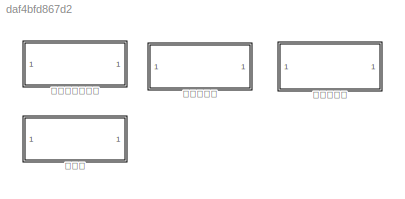
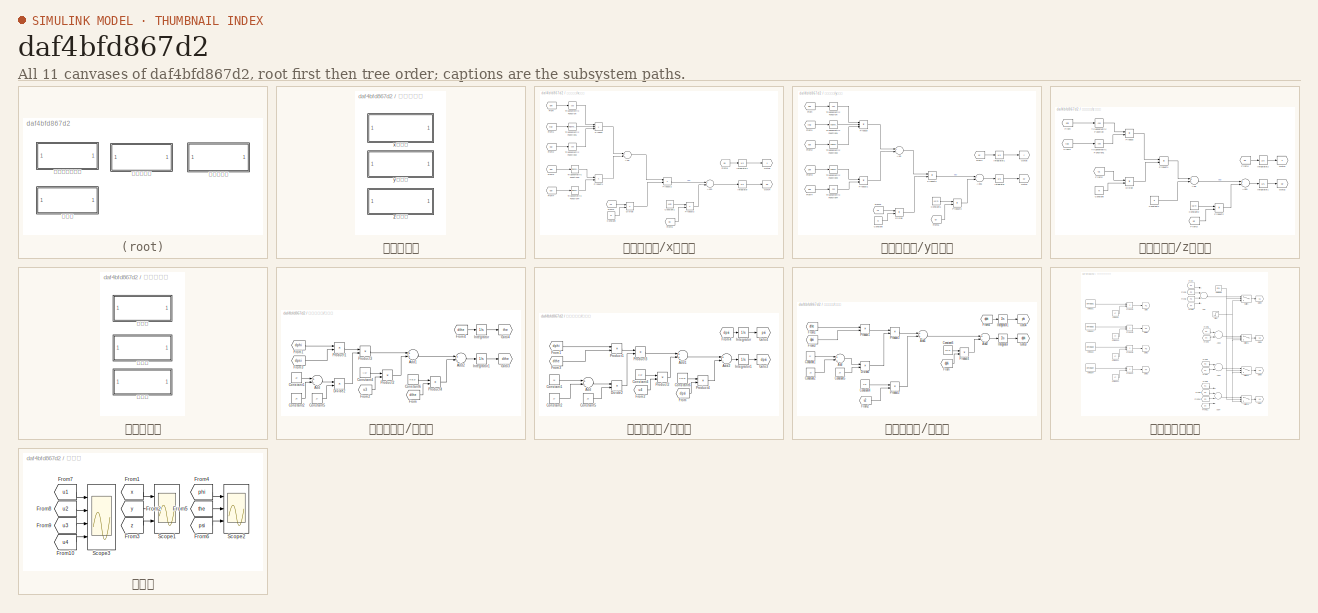
[diagram: thumbnail index - all 11 canvases of the model, root first then tree order]
MODEL slx_daf4bfd867d2
KIND model
CONFIG AbsTol = auto
CONFIG FixedStep = 0.05
CONFIG MaxStep = auto
CONFIG MinStep = auto
CONFIG RelTol = 1e-3
CONFIG SampleTimeConstraint = Unconstrained
CONFIG Solver = ode4
CONFIG SolverMode = Auto
CONFIG SolverName = ode4
CONFIG StartTime = 0.0
CONFIG StopTime = 10
BLOCK [SubSystem] 位置动力学
  Ports = []
  RequestExecContextInheritance = off
  Variant = off
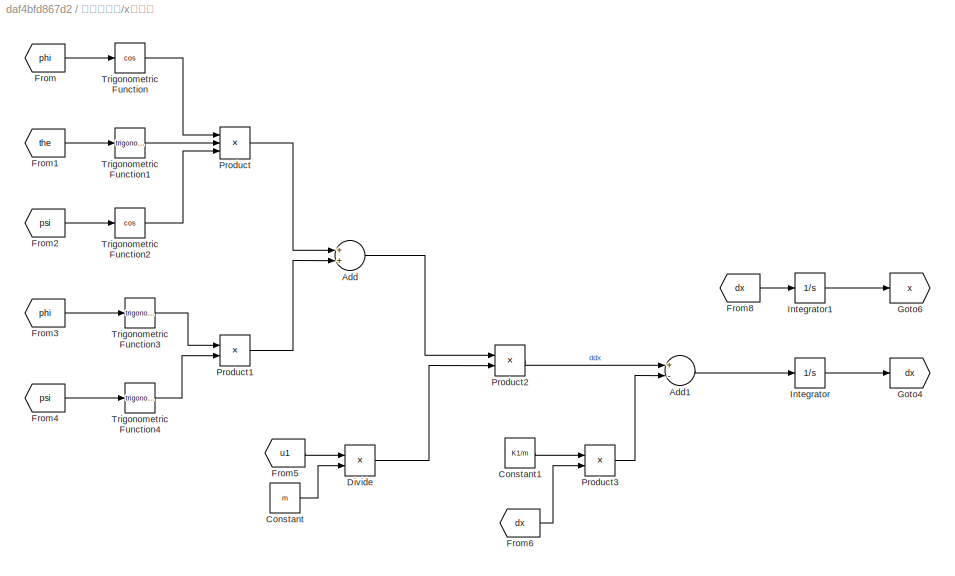
BLOCK [SubSystem] 位置动力学/x子系统
  Ports = []
  RequestExecContextInheritance = off
  Variant = off
BLOCK [Sum] 位置动力学/x子系统/Add
  InputSameDT = off
  OutDataTypeStr = Inherit: Inherit via internal rule
  Ports = [2, 1]
  SaturateOnIntegerOverflow = off
BLOCK [Sum] 位置动力学/x子系统/Add1
  InputSameDT = off
  Inputs = +-
  OutDataTypeStr = Inherit: Inherit via internal rule
  Ports = [2, 1]
  SaturateOnIntegerOverflow = off
BLOCK [Constant] 位置动力学/x子系统/Constant
  Value = m
BLOCK [Constant] 位置动力学/x子系统/Constant1
  Value = K1/m
BLOCK [Product] 位置动力学/x子系统/Divide
  InputSameDT = off
  Inputs = */
  OutDataTypeStr = Inherit: Inherit via internal rule
  Ports = [2, 1]
  RndMeth = Floor
  SaturateOnIntegerOverflow = off
BLOCK [From] 位置动力学/x子系统/From
  GotoTag = phi
  TagVisibility = global
BLOCK [From] 位置动力学/x子系统/From1
  GotoTag = the
  TagVisibility = global
BLOCK [From] 位置动力学/x子系统/From2
  GotoTag = psi
  TagVisibility = global
BLOCK [From] 位置动力学/x子系统/From3
  GotoTag = phi
  TagVisibility = global
BLOCK [From] 位置动力学/x子系统/From4
  GotoTag = psi
  TagVisibility = global
BLOCK [From] 位置动力学/x子系统/From5
  GotoTag = u1
  TagVisibility = global
BLOCK [From] 位置动力学/x子系统/From6
  GotoTag = dx
  TagVisibility = global
BLOCK [From] 位置动力学/x子系统/From8
  GotoTag = dx
  TagVisibility = global
BLOCK [Goto] 位置动力学/x子系统/Goto4
  GotoTag = dx
  TagVisibility = global
BLOCK [Goto] 位置动力学/x子系统/Goto6
  GotoTag = x
  TagVisibility = global
BLOCK [Integrator] 位置动力学/x子系统/Integrator
  InitialCondition = dx_init
  Ports = [1, 1]
BLOCK [Integrator] 位置动力学/x子系统/Integrator1
  InitialCondition = x_init
  Ports = [1, 1]
BLOCK [Product] 位置动力学/x子系统/Product
  InputSameDT = off
  Inputs = 3
  OutDataTypeStr = Inherit: Inherit via internal rule
  Ports = [3, 1]
  RndMeth = Floor
  SaturateOnIntegerOverflow = off
BLOCK [Product] 位置动力学/x子系统/Product1
  InputSameDT = off
  OutDataTypeStr = Inherit: Inherit via internal rule
  Ports = [2, 1]
  RndMeth = Floor
  SaturateOnIntegerOverflow = off
BLOCK [Product] 位置动力学/x子系统/Product2
  InputSameDT = off
  OutDataTypeStr = Inherit: Inherit via internal rule
  Ports = [2, 1]
  RndMeth = Floor
  SaturateOnIntegerOverflow = off
BLOCK [Product] 位置动力学/x子系统/Product3
  InputSameDT = off
  OutDataTypeStr = Inherit: Inherit via internal rule
  Ports = [2, 1]
  RndMeth = Floor
  SaturateOnIntegerOverflow = off
BLOCK [Trigonometry] 位置动力学/x子系统/Trigonometric Function
  Operator = cos
  Ports = [1, 1]
BLOCK [Trigonometry] 位置动力学/x子系统/Trigonometric Function1
  Ports = [1, 1]
BLOCK [Trigonometry] 位置动力学/x子系统/Trigonometric Function2
  Operator = cos
  Ports = [1, 1]
BLOCK [Trigonometry] 位置动力学/x子系统/Trigonometric Function3
  Ports = [1, 1]
BLOCK [Trigonometry] 位置动力学/x子系统/Trigonometric Function4
  Ports = [1, 1]
BLOCK [SubSystem] 位置动力学/y子系统
  Ports = []
  RequestExecContextInheritance = off
  Variant = off
BLOCK [Sum] 位置动力学/y子系统/Add
  InputSameDT = off
  Inputs = +-
  OutDataTypeStr = Inherit: Inherit via internal rule
  Ports = [2, 1]
  SaturateOnIntegerOverflow = off
BLOCK [Sum] 位置动力学/y子系统/Add1
  InputSameDT = off
  Inputs = +-
  OutDataTypeStr = Inherit: Inherit via internal rule
  Ports = [2, 1]
  SaturateOnIntegerOverflow = off
BLOCK [Constant] 位置动力学/y子系统/Constant
  Value = m
BLOCK [Constant] 位置动力学/y子系统/Constant1
  Value = K2/m
BLOCK [Product] 位置动力学/y子系统/Divide
  InputSameDT = off
  Inputs = */
  OutDataTypeStr = Inherit: Inherit via internal rule
  Ports = [2, 1]
  RndMeth = Floor
  SaturateOnIntegerOverflow = off
BLOCK [From] 位置动力学/y子系统/From
  GotoTag = phi
  TagVisibility = global
BLOCK [From] 位置动力学/y子系统/From1
  GotoTag = the
  TagVisibility = global
BLOCK [From] 位置动力学/y子系统/From2
  GotoTag = psi
  TagVisibility = global
BLOCK [From] 位置动力学/y子系统/From3
  GotoTag = phi
  TagVisibility = global
BLOCK [From] 位置动力学/y子系统/From4
  GotoTag = psi
  TagVisibility = global
BLOCK [From] 位置动力学/y子系统/From5
  GotoTag = u1
  TagVisibility = global
BLOCK [From] 位置动力学/y子系统/From6
  GotoTag = dy
  TagVisibility = global
BLOCK [From] 位置动力学/y子系统/From7
  GotoTag = dy
  TagVisibility = global
BLOCK [Goto] 位置动力学/y子系统/Goto4
  GotoTag = dy
  TagVisibility = global
BLOCK [Goto] 位置动力学/y子系统/Goto5
  GotoTag = y
  TagVisibility = global
BLOCK [Integrator] 位置动力学/y子系统/Integrator
  InitialCondition = dy_init
  Ports = [1, 1]
BLOCK [Integrator] 位置动力学/y子系统/Integrator1
  InitialCondition = y_init
  Ports = [1, 1]
BLOCK [Product] 位置动力学/y子系统/Product
  InputSameDT = off
  Inputs = 3
  OutDataTypeStr = Inherit: Inherit via internal rule
  Ports = [3, 1]
  RndMeth = Floor
  SaturateOnIntegerOverflow = off
BLOCK [Product] 位置动力学/y子系统/Product1
  InputSameDT = off
  OutDataTypeStr = Inherit: Inherit via internal rule
  Ports = [2, 1]
  RndMeth = Floor
  SaturateOnIntegerOverflow = off
BLOCK [Product] 位置动力学/y子系统/Product2
  InputSameDT = off
  OutDataTypeStr = Inherit: Inherit via internal rule
  Ports = [2, 1]
  RndMeth = Floor
  SaturateOnIntegerOverflow = off
BLOCK [Product] 位置动力学/y子系统/Product3
  InputSameDT = off
  OutDataTypeStr = Inherit: Inherit via internal rule
  Ports = [2, 1]
  RndMeth = Floor
  SaturateOnIntegerOverflow = off
BLOCK [Trigonometry] 位置动力学/y子系统/Trigonometric Function
  Operator = cos
  Ports = [1, 1]
BLOCK [Trigonometry] 位置动力学/y子系统/Trigonometric Function1
  Ports = [1, 1]
BLOCK [Trigonometry] 位置动力学/y子系统/Trigonometric Function2
  Ports = [1, 1]
BLOCK [Trigonometry] 位置动力学/y子系统/Trigonometric Function3
  Ports = [1, 1]
BLOCK [Trigonometry] 位置动力学/y子系统/Trigonometric Function4
  Operator = cos
  Ports = [1, 1]
BLOCK [SubSystem] 位置动力学/z子系统
  Ports = []
  RequestExecContextInheritance = off
  Variant = off
BLOCK [Sum] 位置动力学/z子系统/Add
  InputSameDT = off
  Inputs = +-
  OutDataTypeStr = Inherit: Inherit via internal rule
  Ports = [2, 1]
  SaturateOnIntegerOverflow = off
BLOCK [Sum] 位置动力学/z子系统/Add1
  InputSameDT = off
  Inputs = +-
  OutDataTypeStr = Inherit: Inherit via internal rule
  Ports = [2, 1]
  SaturateOnIntegerOverflow = off
BLOCK [Constant] 位置动力学/z子系统/Constant
  Value = m
BLOCK [Constant] 位置动力学/z子系统/Constant1
  Value = g
BLOCK [Constant] 位置动力学/z子系统/Constant2
  Value = K3/m
BLOCK [Product] 位置动力学/z子系统/Divide
  InputSameDT = off
  Inputs = */
  OutDataTypeStr = Inherit: Inherit via internal rule
  Ports = [2, 1]
  RndMeth = Floor
  SaturateOnIntegerOverflow = off
BLOCK [From] 位置动力学/z子系统/From
  GotoTag = phi
  TagVisibility = global
BLOCK [From] 位置动力学/z子系统/From1
  GotoTag = the
  TagVisibility = global
BLOCK [From] 位置动力学/z子系统/From2
  GotoTag = u1
  TagVisibility = global
BLOCK [From] 位置动力学/z子系统/From3
  GotoTag = dz
  TagVisibility = global
BLOCK [From] 位置动力学/z子系统/From4
  GotoTag = dz
  TagVisibility = global
BLOCK [Goto] 位置动力学/z子系统/Goto2
  GotoTag = dz
  TagVisibility = global
BLOCK [Goto] 位置动力学/z子系统/Goto4
  GotoTag = z
  TagVisibility = global
BLOCK [Integrator] 位置动力学/z子系统/Integrator1
  InitialCondition = dz_init
  Ports = [1, 1]
BLOCK [Integrator] 位置动力学/z子系统/Integrator2
  InitialCondition = z_init
  Ports = [1, 1]
BLOCK [Product] 位置动力学/z子系统/Product
  InputSameDT = off
  OutDataTypeStr = Inherit: Inherit via internal rule
  Ports = [2, 1]
  RndMeth = Floor
  SaturateOnIntegerOverflow = off
BLOCK [Product] 位置动力学/z子系统/Product1
  InputSameDT = off
  OutDataTypeStr = Inherit: Inherit via internal rule
  Ports = [2, 1]
  RndMeth = Floor
  SaturateOnIntegerOverflow = off
BLOCK [Product] 位置动力学/z子系统/Product2
  InputSameDT = off
  OutDataTypeStr = Inherit: Inherit via internal rule
  Ports = [2, 1]
  RndMeth = Floor
  SaturateOnIntegerOverflow = off
BLOCK [Trigonometry] 位置动力学/z子系统/Trigonometric Function
  Operator = cos
  Ports = [1, 1]
BLOCK [Trigonometry] 位置动力学/z子系统/Trigonometric Function1
  Operator = cos
  Ports = [1, 1]
BLOCK [SubSystem] 姿态动力学
  Ports = []
  RequestExecContextInheritance = off
  Variant = off
BLOCK [SubSystem] 姿态动力学/俯仰角
  Ports = []
  RequestExecContextInheritance = off
  Variant = off
BLOCK [Sum] 姿态动力学/俯仰角/Add
  InputSameDT = off
  Inputs = +-
  OutDataTypeStr = Inherit: Inherit via internal rule
  Ports = [2, 1]
  SaturateOnIntegerOverflow = off
BLOCK [Sum] 姿态动力学/俯仰角/Add1
  InputSameDT = off
  OutDataTypeStr = Inherit: Inherit via internal rule
  Ports = [2, 1]
  SaturateOnIntegerOverflow = off
BLOCK [Sum] 姿态动力学/俯仰角/Add2
  InputSameDT = off
  Inputs = +-
  OutDataTypeStr = Inherit: Inherit via internal rule
  Ports = [2, 1]
  SaturateOnIntegerOverflow = off
BLOCK [Constant] 姿态动力学/俯仰角/Constant1
  Value = Jz
BLOCK [Constant] 姿态动力学/俯仰角/Constant2
  Value = Jx
BLOCK [Constant] 姿态动力学/俯仰角/Constant4
  Value = l/Jy
BLOCK [Constant] 姿态动力学/俯仰角/Constant5
  Value = Jy
BLOCK [Constant] 姿态动力学/俯仰角/Constant6
  Value = K5/Jy
BLOCK [Product] 姿态动力学/俯仰角/Divide2
  InputSameDT = off
  Inputs = */
  OutDataTypeStr = Inherit: Inherit via internal rule
  Ports = [2, 1]
  RndMeth = Floor
  SaturateOnIntegerOverflow = off
BLOCK [From] 姿态动力学/俯仰角/From
  GotoTag = dthe
  TagVisibility = global
BLOCK [From] 姿态动力学/俯仰角/From1
  GotoTag = dphi
  TagVisibility = global
BLOCK [From] 姿态动力学/俯仰角/From2
  GotoTag = u3
  TagVisibility = global
BLOCK [From] 姿态动力学/俯仰角/From3
  GotoTag = dpsi
  TagVisibility = global
BLOCK [From] 姿态动力学/俯仰角/From4
  GotoTag = dthe
  TagVisibility = global
BLOCK [Goto] 姿态动力学/俯仰角/Goto3
  GotoTag = dthe
  TagVisibility = global
BLOCK [Goto] 姿态动力学/俯仰角/Goto4
  GotoTag = the
  TagVisibility = global
BLOCK [Integrator] 姿态动力学/俯仰角/Integrator
  InitialCondition = the_init
  Ports = [1, 1]
BLOCK [Integrator] 姿态动力学/俯仰角/Integrator1
  InitialCondition = dthe_init
  Ports = [1, 1]
BLOCK [Product] 姿态动力学/俯仰角/Product1
  InputSameDT = off
  OutDataTypeStr = Inherit: Inherit via internal rule
  Ports = [2, 1]
  RndMeth = Floor
  SaturateOnIntegerOverflow = off
BLOCK [Product] 姿态动力学/俯仰角/Product2
  InputSameDT = off
  OutDataTypeStr = Inherit: Inherit via internal rule
  Ports = [2, 1]
  RndMeth = Floor
  SaturateOnIntegerOverflow = off
BLOCK [Product] 姿态动力学/俯仰角/Product3
  InputSameDT = off
  OutDataTypeStr = Inherit: Inherit via internal rule
  Ports = [2, 1]
  RndMeth = Floor
  SaturateOnIntegerOverflow = off
BLOCK [Product] 姿态动力学/俯仰角/Product4
  InputSameDT = off
  OutDataTypeStr = Inherit: Inherit via internal rule
  Ports = [2, 1]
  RndMeth = Floor
  SaturateOnIntegerOverflow = off
BLOCK [SubSystem] 姿态动力学/偏航角
  Ports = []
  RequestExecContextInheritance = off
  Variant = off
BLOCK [Sum] 姿态动力学/偏航角/Add
  InputSameDT = off
  Inputs = +-
  OutDataTypeStr = Inherit: Inherit via internal rule
  Ports = [2, 1]
  SaturateOnIntegerOverflow = off
BLOCK [Sum] 姿态动力学/偏航角/Add1
  InputSameDT = off
  OutDataTypeStr = Inherit: Inherit via internal rule
  Ports = [2, 1]
  SaturateOnIntegerOverflow = off
BLOCK [Sum] 姿态动力学/偏航角/Add2
  InputSameDT = off
  Inputs = +-
  OutDataTypeStr = Inherit: Inherit via internal rule
  Ports = [2, 1]
  SaturateOnIntegerOverflow = off
BLOCK [Constant] 姿态动力学/偏航角/Constant1
  Value = Jx
BLOCK [Constant] 姿态动力学/偏航角/Constant2
  Value = Jy
BLOCK [Constant] 姿态动力学/偏航角/Constant4
  Value = 1/Jz
BLOCK [Constant] 姿态动力学/偏航角/Constant5
  Value = Jz
BLOCK [Constant] 姿态动力学/偏航角/Constant6
  Value = K6/Jz
BLOCK [Product] 姿态动力学/偏航角/Divide2
  InputSameDT = off
  Inputs = */
  OutDataTypeStr = Inherit: Inherit via internal rule
  Ports = [2, 1]
  RndMeth = Floor
  SaturateOnIntegerOverflow = off
BLOCK [From] 姿态动力学/偏航角/From
  GotoTag = dpsi
  TagVisibility = global
BLOCK [From] 姿态动力学/偏航角/From1
  GotoTag = dphi
  TagVisibility = global
BLOCK [From] 姿态动力学/偏航角/From2
  GotoTag = u4
  TagVisibility = global
BLOCK [From] 姿态动力学/偏航角/From3
  GotoTag = dthe
  TagVisibility = global
BLOCK [From] 姿态动力学/偏航角/From4
  GotoTag = dpsi
  TagVisibility = global
BLOCK [Goto] 姿态动力学/偏航角/Goto3
  GotoTag = dpsi
  TagVisibility = global
BLOCK [Goto] 姿态动力学/偏航角/Goto4
  GotoTag = psi
  TagVisibility = global
BLOCK [Integrator] 姿态动力学/偏航角/Integrator
  InitialCondition = psi_init
  Ports = [1, 1]
BLOCK [Integrator] 姿态动力学/偏航角/Integrator1
  InitialCondition = dpsi_init
  Ports = [1, 1]
BLOCK [Product] 姿态动力学/偏航角/Product1
  InputSameDT = off
  OutDataTypeStr = Inherit: Inherit via internal rule
  Ports = [2, 1]
  RndMeth = Floor
  SaturateOnIntegerOverflow = off
BLOCK [Product] 姿态动力学/偏航角/Product2
  InputSameDT = off
  OutDataTypeStr = Inherit: Inherit via internal rule
  Ports = [2, 1]
  RndMeth = Floor
  SaturateOnIntegerOverflow = off
BLOCK [Product] 姿态动力学/偏航角/Product3
  InputSameDT = off
  OutDataTypeStr = Inherit: Inherit via internal rule
  Ports = [2, 1]
  RndMeth = Floor
  SaturateOnIntegerOverflow = off
BLOCK [Product] 姿态动力学/偏航角/Product4
  InputSameDT = off
  OutDataTypeStr = Inherit: Inherit via internal rule
  Ports = [2, 1]
  RndMeth = Floor
  SaturateOnIntegerOverflow = off
BLOCK [SubSystem] 姿态动力学/横滚角
  Ports = []
  RequestExecContextInheritance = off
  Variant = off
BLOCK [Sum] 姿态动力学/横滚角/Add
  InputSameDT = off
  Inputs = +-
  OutDataTypeStr = Inherit: Inherit via internal rule
  Ports = [2, 1]
  SaturateOnIntegerOverflow = off
BLOCK [Sum] 姿态动力学/横滚角/Add1
  InputSameDT = off
  OutDataTypeStr = Inherit: Inherit via internal rule
  Ports = [2, 1]
  SaturateOnIntegerOverflow = off
BLOCK [Sum] 姿态动力学/横滚角/Add2
  InputSameDT = off
  Inputs = +-
  OutDataTypeStr = Inherit: Inherit via internal rule
  Ports = [2, 1]
  SaturateOnIntegerOverflow = off
BLOCK [Constant] 姿态动力学/横滚角/Constant1
  Value = Jy
BLOCK [Constant] 姿态动力学/横滚角/Constant2
  Value = Jz
BLOCK [Constant] 姿态动力学/横滚角/Constant4
  Value = l/Jx
BLOCK [Constant] 姿态动力学/横滚角/Constant5
  Value = Jx
BLOCK [Constant] 姿态动力学/横滚角/Constant6
  Value = K4/Jx
BLOCK [Product] 姿态动力学/横滚角/Divide2
  InputSameDT = off
  Inputs = */
  OutDataTypeStr = Inherit: Inherit via internal rule
  Ports = [2, 1]
  RndMeth = Floor
  SaturateOnIntegerOverflow = off
BLOCK [From] 姿态动力学/横滚角/From
  GotoTag = dphi
  TagVisibility = global
BLOCK [From] 姿态动力学/横滚角/From1
  GotoTag = dthe
  TagVisibility = global
BLOCK [From] 姿态动力学/横滚角/From2
  GotoTag = u2
  TagVisibility = global
BLOCK [From] 姿态动力学/横滚角/From3
  GotoTag = dpsi
  TagVisibility = global
BLOCK [From] 姿态动力学/横滚角/From4
  GotoTag = dphi
  TagVisibility = global
BLOCK [Goto] 姿态动力学/横滚角/Goto3
  GotoTag = dphi
  TagVisibility = global
BLOCK [Goto] 姿态动力学/横滚角/Goto4
  GotoTag = phi
  TagVisibility = global
BLOCK [Integrator] 姿态动力学/横滚角/Integrator
  InitialCondition = dphi_init
  Ports = [1, 1]
BLOCK [Integrator] 姿态动力学/横滚角/Integrator1
  InitialCondition = phi_init
  Ports = [1, 1]
BLOCK [Product] 姿态动力学/横滚角/Product1
  InputSameDT = off
  OutDataTypeStr = Inherit: Inherit via internal rule
  Ports = [2, 1]
  RndMeth = Floor
  SaturateOnIntegerOverflow = off
BLOCK [Product] 姿态动力学/横滚角/Product2
  InputSameDT = off
  OutDataTypeStr = Inherit: Inherit via internal rule
  Ports = [2, 1]
  RndMeth = Floor
  SaturateOnIntegerOverflow = off
BLOCK [Product] 姿态动力学/横滚角/Product3
  InputSameDT = off
  OutDataTypeStr = Inherit: Inherit via internal rule
  Ports = [2, 1]
  RndMeth = Floor
  SaturateOnIntegerOverflow = off
BLOCK [Product] 姿态动力学/横滚角/Product4
  InputSameDT = off
  OutDataTypeStr = Inherit: Inherit via internal rule
  Ports = [2, 1]
  RndMeth = Floor
  SaturateOnIntegerOverflow = off
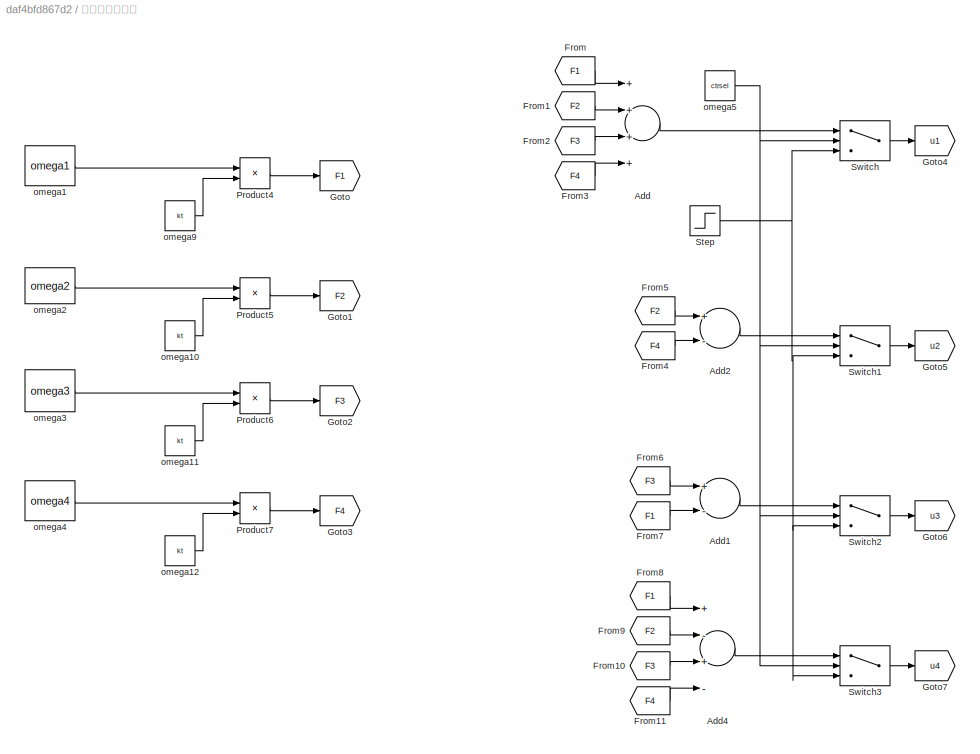
BLOCK [SubSystem] 螺旋桨升力模型
  Ports = []
  RequestExecContextInheritance = off
  Variant = off
BLOCK [Sum] 螺旋桨升力模型/Add
  InputSameDT = off
  Inputs = ++++
  OutDataTypeStr = Inherit: Inherit via internal rule
  Ports = [4, 1]
  SaturateOnIntegerOverflow = off
BLOCK [Sum] 螺旋桨升力模型/Add1
  InputSameDT = off
  Inputs = +-
  OutDataTypeStr = Inherit: Inherit via internal rule
  Ports = [2, 1]
  SaturateOnIntegerOverflow = off
BLOCK [Sum] 螺旋桨升力模型/Add2
  InputSameDT = off
  Inputs = +-
  OutDataTypeStr = Inherit: Inherit via internal rule
  Ports = [2, 1]
  SaturateOnIntegerOverflow = off
BLOCK [Sum] 螺旋桨升力模型/Add4
  InputSameDT = off
  Inputs = +-+-
  OutDataTypeStr = Inherit: Inherit via internal rule
  Ports = [4, 1]
  SaturateOnIntegerOverflow = off
BLOCK [From] 螺旋桨升力模型/From
  GotoTag = F1
  TagVisibility = global
BLOCK [From] 螺旋桨升力模型/From1
  GotoTag = F2
  TagVisibility = global
BLOCK [From] 螺旋桨升力模型/From10
  GotoTag = F3
  TagVisibility = global
BLOCK [From] 螺旋桨升力模型/From11
  GotoTag = F4
  TagVisibility = global
BLOCK [From] 螺旋桨升力模型/From2
  GotoTag = F3
  TagVisibility = global
BLOCK [From] 螺旋桨升力模型/From3
  GotoTag = F4
  TagVisibility = global
BLOCK [From] 螺旋桨升力模型/From4
  GotoTag = F4
  TagVisibility = global
BLOCK [From] 螺旋桨升力模型/From5
  GotoTag = F2
  TagVisibility = global
BLOCK [From] 螺旋桨升力模型/From6
  GotoTag = F3
  TagVisibility = global
BLOCK [From] 螺旋桨升力模型/From7
  GotoTag = F1
  TagVisibility = global
BLOCK [From] 螺旋桨升力模型/From8
  GotoTag = F1
  TagVisibility = global
BLOCK [From] 螺旋桨升力模型/From9
  GotoTag = F2
  TagVisibility = global
BLOCK [Goto] 螺旋桨升力模型/Goto
  GotoTag = F1
  TagVisibility = global
BLOCK [Goto] 螺旋桨升力模型/Goto1
  GotoTag = F2
  TagVisibility = global
BLOCK [Goto] 螺旋桨升力模型/Goto2
  GotoTag = F3
  TagVisibility = global
BLOCK [Goto] 螺旋桨升力模型/Goto3
  GotoTag = F4
  TagVisibility = global
BLOCK [Goto] 螺旋桨升力模型/Goto4
  GotoTag = u1
  TagVisibility = global
BLOCK [Goto] 螺旋桨升力模型/Goto5
  GotoTag = u2
  TagVisibility = global
BLOCK [Goto] 螺旋桨升力模型/Goto6
  GotoTag = u3
  TagVisibility = global
BLOCK [Goto] 螺旋桨升力模型/Goto7
  GotoTag = u4
  TagVisibility = global
BLOCK [Product] 螺旋桨升力模型/Product4
  InputSameDT = off
  OutDataTypeStr = Inherit: Inherit via internal rule
  Ports = [2, 1]
  RndMeth = Floor
  SaturateOnIntegerOverflow = off
BLOCK [Product] 螺旋桨升力模型/Product5
  InputSameDT = off
  OutDataTypeStr = Inherit: Inherit via internal rule
  Ports = [2, 1]
  RndMeth = Floor
  SaturateOnIntegerOverflow = off
BLOCK [Product] 螺旋桨升力模型/Product6
  InputSameDT = off
  OutDataTypeStr = Inherit: Inherit via internal rule
  Ports = [2, 1]
  RndMeth = Floor
  SaturateOnIntegerOverflow = off
BLOCK [Product] 螺旋桨升力模型/Product7
  InputSameDT = off
  OutDataTypeStr = Inherit: Inherit via internal rule
  Ports = [2, 1]
  RndMeth = Floor
  SaturateOnIntegerOverflow = off
BLOCK [Step] 螺旋桨升力模型/Step
  After = 400
  SampleTime = 0
BLOCK [Switch] 螺旋桨升力模型/Switch
  Criteria = u2 > Threshold
  InputSameDT = off
  SaturateOnIntegerOverflow = off
BLOCK [Switch] 螺旋桨升力模型/Switch1
  Criteria = u2 > Threshold
  InputSameDT = off
  SaturateOnIntegerOverflow = off
BLOCK [Switch] 螺旋桨升力模型/Switch2
  Criteria = u2 > Threshold
  InputSameDT = off
  SaturateOnIntegerOverflow = off
BLOCK [Switch] 螺旋桨升力模型/Switch3
  Criteria = u2 > Threshold
  InputSameDT = off
  SaturateOnIntegerOverflow = off
BLOCK [Constant] 螺旋桨升力模型/omega1
  Value = omega1
BLOCK [Constant] 螺旋桨升力模型/omega10
  Value = kt
BLOCK [Constant] 螺旋桨升力模型/omega11
  Value = kt
BLOCK [Constant] 螺旋桨升力模型/omega12
  Value = kt
BLOCK [Constant] 螺旋桨升力模型/omega2
  Value = omega2
BLOCK [Constant] 螺旋桨升力模型/omega3
  Value = omega3
BLOCK [Constant] 螺旋桨升力模型/omega4
  Value = omega4
BLOCK [Constant] 螺旋桨升力模型/omega5
  Value = ctrsel
BLOCK [Constant] 螺旋桨升力模型/omega9
  Value = kt
BLOCK [SubSystem] 观察箱
  Ports = []
  RequestExecContextInheritance = off
  Variant = off
BLOCK [From] 观察箱/From1
  GotoTag = x
  TagVisibility = global
BLOCK [From] 观察箱/From10
  GotoTag = u4
  TagVisibility = global
BLOCK [From] 观察箱/From2
  GotoTag = y
  TagVisibility = global
BLOCK [From] 观察箱/From3
  GotoTag = z
  TagVisibility = global
BLOCK [From] 观察箱/From4
  GotoTag = phi
  TagVisibility = global
BLOCK [From] 观察箱/From5
  GotoTag = the
  TagVisibility = global
BLOCK [From] 观察箱/From6
  GotoTag = psi
  TagVisibility = global
BLOCK [From] 观察箱/From7
  GotoTag = u1
  TagVisibility = global
BLOCK [From] 观察箱/From8
  GotoTag = u2
  TagVisibility = global
BLOCK [From] 观察箱/From9
  GotoTag = u3
  TagVisibility = global
BLOCK [Scope] 观察箱/Scope1
  NumInputPorts = 3
  Ports = [3]
  ScopeSpecificationString = Simulink.scopes.TimeScopeBlockCfg('CurrentConfiguration', extmgr.ConfigurationSet(extmgr.Configuration('Core','General UI',true),extmgr.Configuration('Core','Source UI',true),extmgr.Configuration('Sources','WiredSimulink',true,'DataLoggingVariableName','ScopeData1'),extmgr.Configuration('Visuals','Time Domain',true,'SerializedDisplays',{struct('MinYLimReal','-15.68247','MaxYLimReal','141.14219','Y...<+2725ch>
BLOCK [Scope] 观察箱/Scope2
  NumInputPorts = 3
  Ports = [3]
  ScopeSpecificationString = Simulink.scopes.TimeScopeBlockCfg('CurrentConfiguration', extmgr.ConfigurationSet(extmgr.Configuration('Core','General UI',true),extmgr.Configuration('Core','Source UI',true),extmgr.Configuration('Sources','WiredSimulink',true,'DataLoggingVariableName','ScopeData2'),extmgr.Configuration('Visuals','Time Domain',true,'SerializedDisplays',{struct('MinYLimReal','-2.57851','MaxYLimReal','0.7433','YLabe...<+2705ch>
BLOCK [Scope] 观察箱/Scope3
  NumInputPorts = 4
  Ports = [4]
  ScopeSpecificationString = Simulink.scopes.TimeScopeBlockCfg('CurrentConfiguration', extmgr.ConfigurationSet(extmgr.Configuration('Core','General UI',true),extmgr.Configuration('Core','Source UI',true),extmgr.Configuration('Sources','WiredSimulink',true,'DataLoggingVariableName','ScopeData3'),extmgr.Configuration('Visuals','Time Domain',true,'SerializedDisplays',{struct('MinYLimReal','3.00000','MaxYLimReal','5.00000','YLabe...<+3390ch>
LINE 位置动力学/x子系统/Add1:1 -> 位置动力学/x子系统/Integrator:1
LINE 位置动力学/x子系统/Add:1 -> 位置动力学/x子系统/Product2:1
LINE 位置动力学/x子系统/Constant1:1 -> 位置动力学/x子系统/Product3:1
LINE 位置动力学/x子系统/Constant:1 -> 位置动力学/x子系统/Divide:2
LINE 位置动力学/x子系统/Divide:1 -> 位置动力学/x子系统/Product2:2
LINE 位置动力学/x子系统/From1:1 -> 位置动力学/x子系统/Trigonometric Function1:1
LINE 位置动力学/x子系统/From2:1 -> 位置动力学/x子系统/Trigonometric Function2:1
LINE 位置动力学/x子系统/From3:1 -> 位置动力学/x子系统/Trigonometric Function3:1
LINE 位置动力学/x子系统/From4:1 -> 位置动力学/x子系统/Trigonometric Function4:1
LINE 位置动力学/x子系统/From5:1 -> 位置动力学/x子系统/Divide:1
LINE 位置动力学/x子系统/From6:1 -> 位置动力学/x子系统/Product3:2
LINE 位置动力学/x子系统/From8:1 -> 位置动力学/x子系统/Integrator1:1
LINE 位置动力学/x子系统/From:1 -> 位置动力学/x子系统/Trigonometric Function:1
LINE 位置动力学/x子系统/Integrator1:1 -> 位置动力学/x子系统/Goto6:1
LINE 位置动力学/x子系统/Integrator:1 -> 位置动力学/x子系统/Goto4:1
LINE 位置动力学/x子系统/Product1:1 -> 位置动力学/x子系统/Add:2
LINE 位置动力学/x子系统/Product2:1 -> 位置动力学/x子系统/Add1:1
LINE 位置动力学/x子系统/Product3:1 -> 位置动力学/x子系统/Add1:2
LINE 位置动力学/x子系统/Product:1 -> 位置动力学/x子系统/Add:1
LINE 位置动力学/x子系统/Trigonometric Function1:1 -> 位置动力学/x子系统/Product:2
LINE 位置动力学/x子系统/Trigonometric Function2:1 -> 位置动力学/x子系统/Product:3
LINE 位置动力学/x子系统/Trigonometric Function3:1 -> 位置动力学/x子系统/Product1:1
LINE 位置动力学/x子系统/Trigonometric Function4:1 -> 位置动力学/x子系统/Product1:2
LINE 位置动力学/x子系统/Trigonometric Function:1 -> 位置动力学/x子系统/Product:1
LINE 位置动力学/y子系统/Add1:1 -> 位置动力学/y子系统/Integrator:1
LINE 位置动力学/y子系统/Add:1 -> 位置动力学/y子系统/Product2:1
LINE 位置动力学/y子系统/Constant1:1 -> 位置动力学/y子系统/Product3:1
LINE 位置动力学/y子系统/Constant:1 -> 位置动力学/y子系统/Divide:2
LINE 位置动力学/y子系统/Divide:1 -> 位置动力学/y子系统/Product2:2
LINE 位置动力学/y子系统/From1:1 -> 位置动力学/y子系统/Trigonometric Function1:1
LINE 位置动力学/y子系统/From2:1 -> 位置动力学/y子系统/Trigonometric Function2:1
LINE 位置动力学/y子系统/From3:1 -> 位置动力学/y子系统/Trigonometric Function3:1
LINE 位置动力学/y子系统/From4:1 -> 位置动力学/y子系统/Trigonometric Function4:1
LINE 位置动力学/y子系统/From5:1 -> 位置动力学/y子系统/Divide:1
LINE 位置动力学/y子系统/From6:1 -> 位置动力学/y子系统/Product3:2
LINE 位置动力学/y子系统/From7:1 -> 位置动力学/y子系统/Integrator1:1
LINE 位置动力学/y子系统/From:1 -> 位置动力学/y子系统/Trigonometric Function:1
LINE 位置动力学/y子系统/Integrator1:1 -> 位置动力学/y子系统/Goto5:1
LINE 位置动力学/y子系统/Integrator:1 -> 位置动力学/y子系统/Goto4:1
LINE 位置动力学/y子系统/Product1:1 -> 位置动力学/y子系统/Add:2
LINE 位置动力学/y子系统/Product2:1 -> 位置动力学/y子系统/Add1:1
LINE 位置动力学/y子系统/Product3:1 -> 位置动力学/y子系统/Add1:2
LINE 位置动力学/y子系统/Product:1 -> 位置动力学/y子系统/Add:1
LINE 位置动力学/y子系统/Trigonometric Function1:1 -> 位置动力学/y子系统/Product:2
LINE 位置动力学/y子系统/Trigonometric Function2:1 -> 位置动力学/y子系统/Product:3
LINE 位置动力学/y子系统/Trigonometric Function3:1 -> 位置动力学/y子系统/Product1:1
LINE 位置动力学/y子系统/Trigonometric Function4:1 -> 位置动力学/y子系统/Product1:2
LINE 位置动力学/y子系统/Trigonometric Function:1 -> 位置动力学/y子系统/Product:1
LINE 位置动力学/z子系统/Add1:1 -> 位置动力学/z子系统/Integrator1:1
LINE 位置动力学/z子系统/Add:1 -> 位置动力学/z子系统/Add1:1
LINE 位置动力学/z子系统/Constant1:1 -> 位置动力学/z子系统/Add:2
LINE 位置动力学/z子系统/Constant2:1 -> 位置动力学/z子系统/Product2:1
LINE 位置动力学/z子系统/Constant:1 -> 位置动力学/z子系统/Divide:2
LINE 位置动力学/z子系统/Divide:1 -> 位置动力学/z子系统/Product1:2
LINE 位置动力学/z子系统/From1:1 -> 位置动力学/z子系统/Trigonometric Function1:1
LINE 位置动力学/z子系统/From2:1 -> 位置动力学/z子系统/Divide:1
LINE 位置动力学/z子系统/From3:1 -> 位置动力学/z子系统/Product2:2
LINE 位置动力学/z子系统/From4:1 -> 位置动力学/z子系统/Integrator2:1
LINE 位置动力学/z子系统/From:1 -> 位置动力学/z子系统/Trigonometric Function:1
LINE 位置动力学/z子系统/Integrator1:1 -> 位置动力学/z子系统/Goto2:1
LINE 位置动力学/z子系统/Integrator2:1 -> 位置动力学/z子系统/Goto4:1
LINE 位置动力学/z子系统/Product1:1 -> 位置动力学/z子系统/Add:1
LINE 位置动力学/z子系统/Product2:1 -> 位置动力学/z子系统/Add1:2
LINE 位置动力学/z子系统/Product:1 -> 位置动力学/z子系统/Product1:1
LINE 位置动力学/z子系统/Trigonometric Function1:1 -> 位置动力学/z子系统/Product:2
LINE 位置动力学/z子系统/Trigonometric Function:1 -> 位置动力学/z子系统/Product:1
LINE 姿态动力学/俯仰角/Add1:1 -> 姿态动力学/俯仰角/Add2:1
LINE 姿态动力学/俯仰角/Add2:1 -> 姿态动力学/俯仰角/Integrator1:1
LINE 姿态动力学/俯仰角/Add:1 -> 姿态动力学/俯仰角/Divide2:1
LINE 姿态动力学/俯仰角/Constant1:1 -> 姿态动力学/俯仰角/Add:1
LINE 姿态动力学/俯仰角/Constant2:1 -> 姿态动力学/俯仰角/Add:2
LINE 姿态动力学/俯仰角/Constant4:1 -> 姿态动力学/俯仰角/Product2:1
LINE 姿态动力学/俯仰角/Constant5:1 -> 姿态动力学/俯仰角/Divide2:2
LINE 姿态动力学/俯仰角/Constant6:1 -> 姿态动力学/俯仰角/Product4:1
LINE 姿态动力学/俯仰角/Divide2:1 -> 姿态动力学/俯仰角/Product3:2
LINE 姿态动力学/俯仰角/From1:1 -> 姿态动力学/俯仰角/Product1:1
LINE 姿态动力学/俯仰角/From2:1 -> 姿态动力学/俯仰角/Product2:2
LINE 姿态动力学/俯仰角/From3:1 -> 姿态动力学/俯仰角/Product1:2
LINE 姿态动力学/俯仰角/From4:1 -> 姿态动力学/俯仰角/Integrator:1
LINE 姿态动力学/俯仰角/From:1 -> 姿态动力学/俯仰角/Product4:2
LINE 姿态动力学/俯仰角/Integrator1:1 -> 姿态动力学/俯仰角/Goto3:1
LINE 姿态动力学/俯仰角/Integrator:1 -> 姿态动力学/俯仰角/Goto4:1
LINE 姿态动力学/俯仰角/Product1:1 -> 姿态动力学/俯仰角/Product3:1
LINE 姿态动力学/俯仰角/Product2:1 -> 姿态动力学/俯仰角/Add1:2
LINE 姿态动力学/俯仰角/Product3:1 -> 姿态动力学/俯仰角/Add1:1
LINE 姿态动力学/俯仰角/Product4:1 -> 姿态动力学/俯仰角/Add2:2
LINE 姿态动力学/偏航角/Add1:1 -> 姿态动力学/偏航角/Add2:1
LINE 姿态动力学/偏航角/Add2:1 -> 姿态动力学/偏航角/Integrator1:1
LINE 姿态动力学/偏航角/Add:1 -> 姿态动力学/偏航角/Divide2:1
LINE 姿态动力学/偏航角/Constant1:1 -> 姿态动力学/偏航角/Add:1
LINE 姿态动力学/偏航角/Constant2:1 -> 姿态动力学/偏航角/Add:2
LINE 姿态动力学/偏航角/Constant4:1 -> 姿态动力学/偏航角/Product2:1
LINE 姿态动力学/偏航角/Constant5:1 -> 姿态动力学/偏航角/Divide2:2
LINE 姿态动力学/偏航角/Constant6:1 -> 姿态动力学/偏航角/Product4:1
LINE 姿态动力学/偏航角/Divide2:1 -> 姿态动力学/偏航角/Product3:2
LINE 姿态动力学/偏航角/From1:1 -> 姿态动力学/偏航角/Product1:1
LINE 姿态动力学/偏航角/From2:1 -> 姿态动力学/偏航角/Product2:2
LINE 姿态动力学/偏航角/From3:1 -> 姿态动力学/偏航角/Product1:2
LINE 姿态动力学/偏航角/From4:1 -> 姿态动力学/偏航角/Integrator:1
LINE 姿态动力学/偏航角/From:1 -> 姿态动力学/偏航角/Product4:2
LINE 姿态动力学/偏航角/Integrator1:1 -> 姿态动力学/偏航角/Goto3:1
LINE 姿态动力学/偏航角/Integrator:1 -> 姿态动力学/偏航角/Goto4:1
LINE 姿态动力学/偏航角/Product1:1 -> 姿态动力学/偏航角/Product3:1
LINE 姿态动力学/偏航角/Product2:1 -> 姿态动力学/偏航角/Add1:2
LINE 姿态动力学/偏航角/Product3:1 -> 姿态动力学/偏航角/Add1:1
LINE 姿态动力学/偏航角/Product4:1 -> 姿态动力学/偏航角/Add2:2
LINE 姿态动力学/横滚角/Add1:1 -> 姿态动力学/横滚角/Add2:1
LINE 姿态动力学/横滚角/Add2:1 -> 姿态动力学/横滚角/Integrator:1
LINE 姿态动力学/横滚角/Add:1 -> 姿态动力学/横滚角/Divide2:1
LINE 姿态动力学/横滚角/Constant1:1 -> 姿态动力学/横滚角/Add:1
LINE 姿态动力学/横滚角/Constant2:1 -> 姿态动力学/横滚角/Add:2
LINE 姿态动力学/横滚角/Constant4:1 -> 姿态动力学/横滚角/Product2:1
LINE 姿态动力学/横滚角/Constant5:1 -> 姿态动力学/横滚角/Divide2:2
LINE 姿态动力学/横滚角/Constant6:1 -> 姿态动力学/横滚角/Product4:1
LINE 姿态动力学/横滚角/Divide2:1 -> 姿态动力学/横滚角/Product3:2
LINE 姿态动力学/横滚角/From1:1 -> 姿态动力学/横滚角/Product1:1
LINE 姿态动力学/横滚角/From2:1 -> 姿态动力学/横滚角/Product2:2
LINE 姿态动力学/横滚角/From3:1 -> 姿态动力学/横滚角/Product1:2
LINE 姿态动力学/横滚角/From4:1 -> 姿态动力学/横滚角/Integrator1:1
LINE 姿态动力学/横滚角/From:1 -> 姿态动力学/横滚角/Product4:2
LINE 姿态动力学/横滚角/Integrator1:1 -> 姿态动力学/横滚角/Goto4:1
LINE 姿态动力学/横滚角/Integrator:1 -> 姿态动力学/横滚角/Goto3:1
LINE 姿态动力学/横滚角/Product1:1 -> 姿态动力学/横滚角/Product3:1
LINE 姿态动力学/横滚角/Product2:1 -> 姿态动力学/横滚角/Add1:2
LINE 姿态动力学/横滚角/Product3:1 -> 姿态动力学/横滚角/Add1:1
LINE 姿态动力学/横滚角/Product4:1 -> 姿态动力学/横滚角/Add2:2
LINE 螺旋桨升力模型/Add1:1 -> 螺旋桨升力模型/Switch2:1
LINE 螺旋桨升力模型/Add2:1 -> 螺旋桨升力模型/Switch1:1
LINE 螺旋桨升力模型/Add4:1 -> 螺旋桨升力模型/Switch3:1
LINE 螺旋桨升力模型/Add:1 -> 螺旋桨升力模型/Switch:1
LINE 螺旋桨升力模型/From10:1 -> 螺旋桨升力模型/Add4:3
LINE 螺旋桨升力模型/From11:1 -> 螺旋桨升力模型/Add4:4
LINE 螺旋桨升力模型/From1:1 -> 螺旋桨升力模型/Add:2
LINE 螺旋桨升力模型/From2:1 -> 螺旋桨升力模型/Add:3
LINE 螺旋桨升力模型/From3:1 -> 螺旋桨升力模型/Add:4
LINE 螺旋桨升力模型/From4:1 -> 螺旋桨升力模型/Add2:2
LINE 螺旋桨升力模型/From5:1 -> 螺旋桨升力模型/Add2:1
LINE 螺旋桨升力模型/From6:1 -> 螺旋桨升力模型/Add1:1
LINE 螺旋桨升力模型/From7:1 -> 螺旋桨升力模型/Add1:2
LINE 螺旋桨升力模型/From8:1 -> 螺旋桨升力模型/Add4:1
LINE 螺旋桨升力模型/From9:1 -> 螺旋桨升力模型/Add4:2
LINE 螺旋桨升力模型/From:1 -> 螺旋桨升力模型/Add:1
LINE 螺旋桨升力模型/Product4:1 -> 螺旋桨升力模型/Goto:1
LINE 螺旋桨升力模型/Product5:1 -> 螺旋桨升力模型/Goto1:1
LINE 螺旋桨升力模型/Product6:1 -> 螺旋桨升力模型/Goto2:1
LINE 螺旋桨升力模型/Product7:1 -> 螺旋桨升力模型/Goto3:1
NET 螺旋桨升力模型/Step:1 -> 螺旋桨升力模型/Switch1:3, 螺旋桨升力模型/Switch2:3, 螺旋桨升力模型/Switch3:3, 螺旋桨升力模型/Switch:3
LINE 螺旋桨升力模型/Switch1:1 -> 螺旋桨升力模型/Goto5:1
LINE 螺旋桨升力模型/Switch2:1 -> 螺旋桨升力模型/Goto6:1
LINE 螺旋桨升力模型/Switch3:1 -> 螺旋桨升力模型/Goto7:1
LINE 螺旋桨升力模型/Switch:1 -> 螺旋桨升力模型/Goto4:1
LINE 螺旋桨升力模型/omega10:1 -> 螺旋桨升力模型/Product5:2
LINE 螺旋桨升力模型/omega11:1 -> 螺旋桨升力模型/Product6:2
LINE 螺旋桨升力模型/omega12:1 -> 螺旋桨升力模型/Product7:2
LINE 螺旋桨升力模型/omega1:1 -> 螺旋桨升力模型/Product4:1
LINE 螺旋桨升力模型/omega2:1 -> 螺旋桨升力模型/Product5:1
LINE 螺旋桨升力模型/omega3:1 -> 螺旋桨升力模型/Product6:1
LINE 螺旋桨升力模型/omega4:1 -> 螺旋桨升力模型/Product7:1
NET 螺旋桨升力模型/omega5:1 -> 螺旋桨升力模型/Switch1:2, 螺旋桨升力模型/Switch2:2, 螺旋桨升力模型/Switch3:2, 螺旋桨升力模型/Switch:2
LINE 螺旋桨升力模型/omega9:1 -> 螺旋桨升力模型/Product4:2
LINE 观察箱/From10:1 -> 观察箱/Scope3:4
LINE 观察箱/From1:1 -> 观察箱/Scope1:1
LINE 观察箱/From2:1 -> 观察箱/Scope1:2
LINE 观察箱/From3:1 -> 观察箱/Scope1:3
LINE 观察箱/From4:1 -> 观察箱/Scope2:1
LINE 观察箱/From5:1 -> 观察箱/Scope2:2
LINE 观察箱/From6:1 -> 观察箱/Scope2:3
LINE 观察箱/From7:1 -> 观察箱/Scope3:1
LINE 观察箱/From8:1 -> 观察箱/Scope3:2
LINE 观察箱/From9:1 -> 观察箱/Scope3:3
note: NET lines group one-source signal fan-out (src -> all destinations, sorted); 1:1 wires keep LINE
